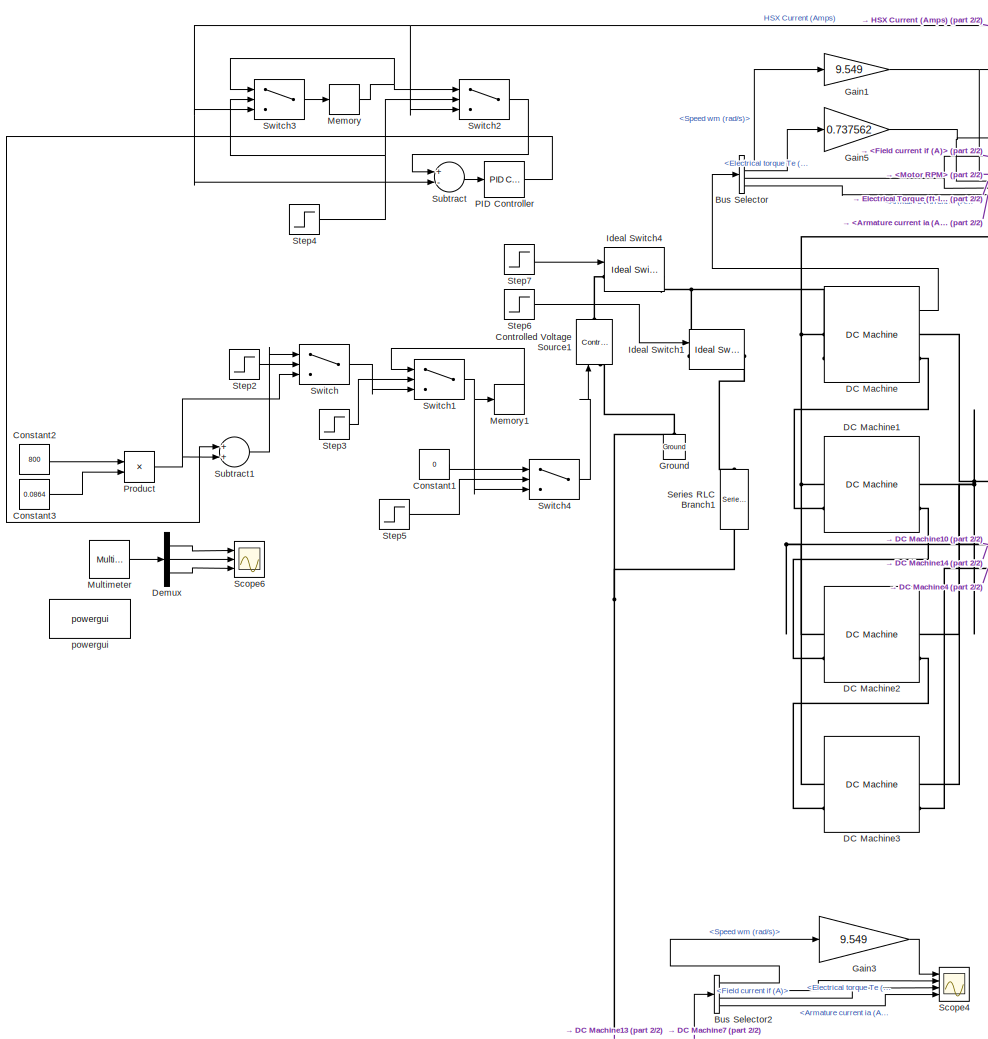
[diagram: root canvas - part 1/2, left side, full height]
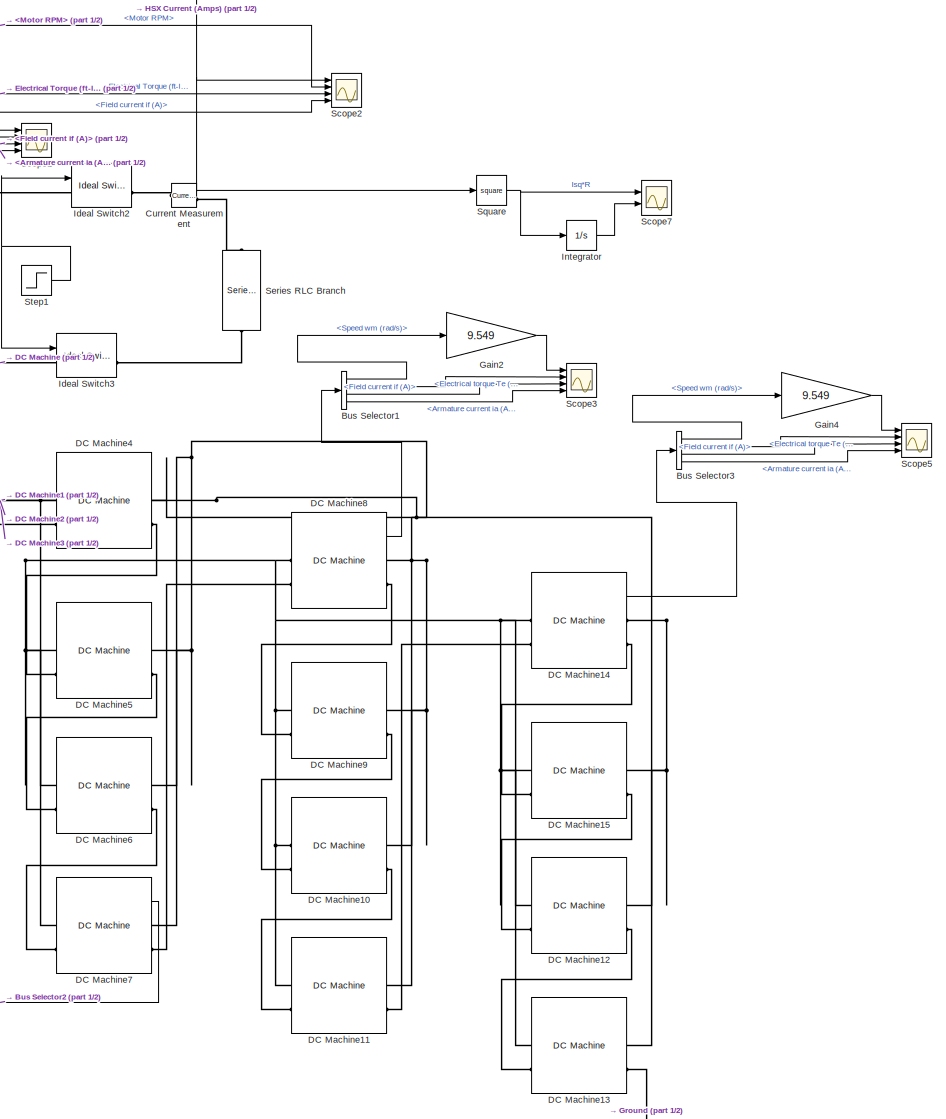
[diagram: root canvas - part 2/2, right side, full height]
MODEL slx_31513acd9793
KIND model
CONFIG AbsTol = auto
CONFIG EnableMultiTasking = off
CONFIG FixedStep = auto
CONFIG MaxStep = auto
CONFIG MinStep = auto
CONFIG RelTol = 1e-3
CONFIG SampleTimeConstraint = Unconstrained
CONFIG Solver = VariableStepAuto
CONFIG SolverName = VariableStepAuto
CONFIG StartTime = 0.0
CONFIG StopTime = 20
WORKSPACE source: mxarray member
WORKSPACE Laf = 0.00847
WORKSPACE Rarm = 0.0096
WORKSPACE angular_vel = 163.55
WORKSPACE angular_vel_2 = 165
BLOCK [BusSelector] Bus Selector
  OutputAsBus = off
  OutputSignals = Speed wm (rad/s),Electrical torque Te (n m),Field current if (A),Armature current ia (A)
  Ports = [1, 4]
BLOCK [BusSelector] Bus Selector1
  OutputAsBus = off
  OutputSignals = Speed wm (rad/s),Electrical torque Te (n m),Field current if (A),Armature current ia (A)
  Ports = [1, 4]
BLOCK [BusSelector] Bus Selector2
  OutputAsBus = off
  OutputSignals = Speed wm (rad/s),Electrical torque Te (n m),Field current if (A),Armature current ia (A)
  Ports = [1, 4]
BLOCK [BusSelector] Bus Selector3
  OutputAsBus = off
  OutputSignals = Speed wm (rad/s),Electrical torque Te (n m),Field current if (A),Armature current ia (A)
  Ports = [1, 4]
BLOCK [Constant] Constant1
  Value = 0
BLOCK [Constant] Constant2
  Value = 800
BLOCK [Constant] Constant3
  Value = 0.0864
BLOCK [Reference] Controlled Voltage Source1  REF=powerlib/Electrical
Sources/Controlled Voltage Source
  Ports = [1, 0, 0, 0, 0, 1, 1]
  SourceBlock = powerlib/Electrical\nSources/Controlled Voltage Source
  SourceProductBaseCode = PS
  SourceProductName = Simscape Electrical
  SourceType = Controlled Voltage Source
BLOCK [Reference] Current Measurement  REF=powerlib/Measurements/Current Measurement
  Ports = [0, 1, 0, 0, 0, 1, 1]
  SourceBlock = powerlib/Measurements/Current Measurement
  SourceProductBaseCode = PS
  SourceProductName = Simscape Electrical
  SourceType = Current Measurement
  UserDataPersistent = on
BLOCK [Reference] DC Machine  REF=powerlib/Machines/DC Machine
  Ports = [1, 1, 0, 0, 0, 2, 2]
  SourceBlock = powerlib/Machines/DC Machine
  SourceProductBaseCode = PS
  SourceProductName = Simscape Electrical
  SourceType = DC machine
BLOCK [Reference] DC Machine1  REF=powerlib/Machines/DC Machine
  Ports = [1, 1, 0, 0, 0, 2, 2]
  SourceBlock = powerlib/Machines/DC Machine
  SourceProductBaseCode = PS
  SourceProductName = Simscape Electrical
  SourceType = DC machine
BLOCK [Reference] DC Machine10  REF=powerlib/Machines/DC Machine
  Ports = [1, 1, 0, 0, 0, 2, 2]
  SourceBlock = powerlib/Machines/DC Machine
  SourceProductBaseCode = PS
  SourceProductName = Simscape Electrical
  SourceType = DC machine
BLOCK [Reference] DC Machine11  REF=powerlib/Machines/DC Machine
  Ports = [1, 1, 0, 0, 0, 2, 2]
  SourceBlock = powerlib/Machines/DC Machine
  SourceProductBaseCode = PS
  SourceProductName = Simscape Electrical
  SourceType = DC machine
BLOCK [Reference] DC Machine12  REF=powerlib/Machines/DC Machine
  Ports = [1, 1, 0, 0, 0, 2, 2]
  SourceBlock = powerlib/Machines/DC Machine
  SourceProductBaseCode = PS
  SourceProductName = Simscape Electrical
  SourceType = DC machine
BLOCK [Reference] DC Machine13  REF=powerlib/Machines/DC Machine
  Ports = [1, 1, 0, 0, 0, 2, 2]
  SourceBlock = powerlib/Machines/DC Machine
  SourceProductBaseCode = PS
  SourceProductName = Simscape Electrical
  SourceType = DC machine
BLOCK [Reference] DC Machine14  REF=powerlib/Machines/DC Machine
  Ports = [1, 1, 0, 0, 0, 2, 2]
  SourceBlock = powerlib/Machines/DC Machine
  SourceProductBaseCode = PS
  SourceProductName = Simscape Electrical
  SourceType = DC machine
BLOCK [Reference] DC Machine15  REF=powerlib/Machines/DC Machine
  Ports = [1, 1, 0, 0, 0, 2, 2]
  SourceBlock = powerlib/Machines/DC Machine
  SourceProductBaseCode = PS
  SourceProductName = Simscape Electrical
  SourceType = DC machine
BLOCK [Reference] DC Machine2  REF=powerlib/Machines/DC Machine
  Ports = [1, 1, 0, 0, 0, 2, 2]
  SourceBlock = powerlib/Machines/DC Machine
  SourceProductBaseCode = PS
  SourceProductName = Simscape Electrical
  SourceType = DC machine
BLOCK [Reference] DC Machine3  REF=powerlib/Machines/DC Machine
  Ports = [1, 1, 0, 0, 0, 2, 2]
  SourceBlock = powerlib/Machines/DC Machine
  SourceProductBaseCode = PS
  SourceProductName = Simscape Electrical
  SourceType = DC machine
BLOCK [Reference] DC Machine4  REF=powerlib/Machines/DC Machine
  Ports = [1, 1, 0, 0, 0, 2, 2]
  SourceBlock = powerlib/Machines/DC Machine
  SourceProductBaseCode = PS
  SourceProductName = Simscape Electrical
  SourceType = DC machine
BLOCK [Reference] DC Machine5  REF=powerlib/Machines/DC Machine
  Ports = [1, 1, 0, 0, 0, 2, 2]
  SourceBlock = powerlib/Machines/DC Machine
  SourceProductBaseCode = PS
  SourceProductName = Simscape Electrical
  SourceType = DC machine
BLOCK [Reference] DC Machine6  REF=powerlib/Machines/DC Machine
  Ports = [1, 1, 0, 0, 0, 2, 2]
  SourceBlock = powerlib/Machines/DC Machine
  SourceProductBaseCode = PS
  SourceProductName = Simscape Electrical
  SourceType = DC machine
BLOCK [Reference] DC Machine7  REF=powerlib/Machines/DC Machine
  Ports = [1, 1, 0, 0, 0, 2, 2]
  SourceBlock = powerlib/Machines/DC Machine
  SourceProductBaseCode = PS
  SourceProductName = Simscape Electrical
  SourceType = DC machine
BLOCK [Reference] DC Machine8  REF=powerlib/Machines/DC Machine
  Ports = [1, 1, 0, 0, 0, 2, 2]
  SourceBlock = powerlib/Machines/DC Machine
  SourceProductBaseCode = PS
  SourceProductName = Simscape Electrical
  SourceType = DC machine
BLOCK [Reference] DC Machine9  REF=powerlib/Machines/DC Machine
  Ports = [1, 1, 0, 0, 0, 2, 2]
  SourceBlock = powerlib/Machines/DC Machine
  SourceProductBaseCode = PS
  SourceProductName = Simscape Electrical
  SourceType = DC machine
BLOCK [Demux] Demux
  DisplayOption = bar
  Outputs = 3
  Ports = [1, 3]
BLOCK [Gain] Gain1
  Gain = 9.549
  OutDataTypeStr = Inherit: Inherit via internal rule
  ParamDataTypeStr = Inherit: Inherit via internal rule
  SaturateOnIntegerOverflow = off
BLOCK [Gain] Gain2
  Gain = 9.549
  OutDataTypeStr = Inherit: Inherit via internal rule
  ParamDataTypeStr = Inherit: Inherit via internal rule
  SaturateOnIntegerOverflow = off
BLOCK [Gain] Gain3
  Gain = 9.549
  OutDataTypeStr = Inherit: Inherit via internal rule
  ParamDataTypeStr = Inherit: Inherit via internal rule
  SaturateOnIntegerOverflow = off
BLOCK [Gain] Gain4
  Gain = 9.549
  OutDataTypeStr = Inherit: Inherit via internal rule
  ParamDataTypeStr = Inherit: Inherit via internal rule
  SaturateOnIntegerOverflow = off
BLOCK [Gain] Gain5
  Gain = 0.737562
  OutDataTypeStr = Inherit: Inherit via internal rule
  ParamDataTypeStr = Inherit: Inherit via internal rule
  SaturateOnIntegerOverflow = off
BLOCK [Reference] Ground  REF=powerlib/Elements/Ground
  Ports = [0, 0, 0, 0, 0, 1]
  SourceBlock = powerlib/Elements/Ground
  SourceProductBaseCode = PS
  SourceProductName = Simscape Electrical
  SourceType = Ground
BLOCK [Reference] Ideal Switch1  REF=powerlib/Power
Electronics/Ideal Switch
  Ports = [1, 1, 0, 0, 0, 1, 1]
  SourceBlock = powerlib/Power\nElectronics/Ideal Switch
  SourceProductBaseCode = PS
  SourceProductName = Simscape Electrical
  SourceType = Ideal Switch
BLOCK [Reference] Ideal Switch2  REF=powerlib/Power
Electronics/Ideal Switch
  Ports = [1, 1, 0, 0, 0, 1, 1]
  SourceBlock = powerlib/Power\nElectronics/Ideal Switch
  SourceProductBaseCode = PS
  SourceProductName = Simscape Electrical
  SourceType = Ideal Switch
BLOCK [Reference] Ideal Switch3  REF=powerlib/Power
Electronics/Ideal Switch
  Ports = [1, 1, 0, 0, 0, 1, 1]
  SourceBlock = powerlib/Power\nElectronics/Ideal Switch
  SourceProductBaseCode = PS
  SourceProductName = Simscape Electrical
  SourceType = Ideal Switch
BLOCK [Reference] Ideal Switch4  REF=powerlib/Power
Electronics/Ideal Switch
  Ports = [1, 1, 0, 0, 0, 1, 1]
  SourceBlock = powerlib/Power\nElectronics/Ideal Switch
  SourceProductBaseCode = PS
  SourceProductName = Simscape Electrical
  SourceType = Ideal Switch
BLOCK [Integrator] Integrator
  Ports = [1, 1]
  ZeroCross = off
BLOCK [Memory] Memory
BLOCK [Memory] Memory1
BLOCK [Reference] Multimeter  REF=powerlib/Measurements/Multimeter
  Ports = [0, 1]
  SourceBlock = powerlib/Measurements/Multimeter
  SourceProductBaseCode = PS
  SourceProductName = Simscape Electrical
  SourceType = MultimeterPSB
BLOCK [Reference] PID Controller  REF=simulink/Continuous/PID Controller
  Ports = [1, 1]
  SourceBlock = simulink/Continuous/PID Controller
  SourceProductBaseCode = SL
  SourceProductName = Simulink
  SourceType = PID 1dof
BLOCK [Product] Product
  InputSameDT = off
  OutDataTypeStr = Inherit: Inherit via internal rule
  Ports = [2, 1]
  RndMeth = Floor
  SaturateOnIntegerOverflow = off
BLOCK [Scope] Scope1
  Floating = off
  NumInputPorts = 4
  Ports = [4]
  ScopeSpecificationString = Simulink.scopes.TimeScopeBlockCfg('CurrentConfiguration', extmgr.ConfigurationSet(extmgr.Configuration('Core','General UI',true,'FigureColor',[0 0 0]),extmgr.Configuration('Core','Source UI',true),extmgr.Configuration('Sources','WiredSimulink',true,'DataLoggingVariableName','ScopeData1'),extmgr.Configuration('Visuals','Time Domain',true,'SerializedDisplays',{struct('MinYLimReal','1247.09077','MaxY...<+3526ch>
BLOCK [Scope] Scope2
  Floating = off
  NumInputPorts = 4
  Ports = [4]
  ScopeSpecificationString = Simulink.scopes.TimeScopeBlockCfg('CurrentConfiguration', extmgr.ConfigurationSet(extmgr.Configuration('Core','General UI',true),extmgr.Configuration('Core','Source UI',true),extmgr.Configuration('Sources','WiredSimulink',true,'DataLoggingVariableName','ScopeData1','SampleTime','0.005'),extmgr.Configuration('Visuals','Time Domain',true,'SerializedDisplays',{struct('MinYLimReal','-1353.43043','MaxY...<+3793ch>
BLOCK [Scope] Scope3
  Floating = off
  NumInputPorts = 4
  Ports = [4]
  ScopeSpecificationString = Simulink.scopes.TimeScopeBlockCfg('CurrentConfiguration', extmgr.ConfigurationSet(extmgr.Configuration('Core','General UI',true),extmgr.Configuration('Core','Source UI',true),extmgr.Configuration('Sources','WiredSimulink',true,'DataLoggingVariableName','ScopeData2'),extmgr.Configuration('Visuals','Time Domain',true,'SerializedDisplays',{struct('MinYLimReal','68.79963','MaxYLimReal','2178.0156','YL...<+3504ch>
BLOCK [Scope] Scope4
  Floating = off
  NumInputPorts = 4
  Ports = [4]
  ScopeSpecificationString = Simulink.scopes.TimeScopeBlockCfg('CurrentConfiguration', extmgr.ConfigurationSet(extmgr.Configuration('Core','General UI',true),extmgr.Configuration('Core','Source UI',true),extmgr.Configuration('Sources','WiredSimulink',true,'DataLoggingVariableName','ScopeData3'),extmgr.Configuration('Visuals','Time Domain',true,'SerializedDisplays',{struct('MinYLimReal','1012.14221','MaxYLimReal','1665.24525',...<+3504ch>
BLOCK [Scope] Scope5
  Floating = off
  NumInputPorts = 4
  Ports = [4]
  ScopeSpecificationString = Simulink.scopes.TimeScopeBlockCfg('CurrentConfiguration', extmgr.ConfigurationSet(extmgr.Configuration('Core','General UI',true),extmgr.Configuration('Core','Source UI',true),extmgr.Configuration('Sources','WiredSimulink',true,'DataLoggingVariableName','ScopeData4'),extmgr.Configuration('Visuals','Time Domain',true,'SerializedDisplays',{struct('MinYLimReal','1137.87929','MaxYLimReal','1651.27447',...<+3503ch>
BLOCK [Scope] Scope6
  Floating = off
  NumInputPorts = 3
  Ports = [3]
  ScopeSpecificationString = Simulink.scopes.TimeScopeBlockCfg('CurrentConfiguration', extmgr.ConfigurationSet(extmgr.Configuration('Core','General UI',true,'FigureColor',[0 0 0]),extmgr.Configuration('Core','Source UI',true),extmgr.Configuration('Sources','WiredSimulink',true,'DataLoggingVariableName','ScopeData1','SampleTime','0.01'),extmgr.Configuration('Visuals','Time Domain',true,'SerializedDisplays',{struct('MinYLimReal...<+2888ch>
BLOCK [Scope] Scope7
  Floating = off
  NumInputPorts = 2
  Ports = [2]
  ScopeSpecificationString = Simulink.scopes.TimeScopeBlockCfg('CurrentConfiguration', extmgr.ConfigurationSet(extmgr.Configuration('Core','General UI',true),extmgr.Configuration('Core','Source UI',true),extmgr.Configuration('Sources','WiredSimulink',true,'DataLoggingVariableName','ScopeData1','SampleTime','0.005'),extmgr.Configuration('Visuals','Time Domain',true,'SerializedDisplays',{struct('MinYLimReal','-14654191.5282','M...<+2329ch>
BLOCK [Reference] Series RLC Branch  REF=powerlib/Elements/Series RLC Branch
  Ports = [0, 0, 0, 0, 0, 1, 1]
  SourceBlock = powerlib/Elements/Series RLC Branch
  SourceProductBaseCode = PS
  SourceProductName = Simscape Electrical
  SourceType = Series RLC Branch
BLOCK [Reference] Series RLC Branch1  REF=powerlib/Elements/Series RLC Branch
  AttributesFormatString = %<Description>
  Description = Field Dump Resistor
  Ports = [0, 0, 0, 0, 0, 1, 1]
  SourceBlock = powerlib/Elements/Series RLC Branch
  SourceProductBaseCode = PS
  SourceProductName = Simscape Electrical
  SourceType = Series RLC Branch
BLOCK [Math] Square
  Operator = square
  Ports = [1, 1]
  RndMeth = Zero
BLOCK [Step] Step1
  SampleTime = 0
  Time = 12
  VectorParams1D = off
BLOCK [Step] Step2
  SampleTime = 0
  Time = 12.72
  VectorParams1D = off
  ZeroCross = off
BLOCK [Step] Step3
  SampleTime = 0
  Time = 13
  VectorParams1D = off
  ZeroCross = off
BLOCK [Step] Step4
  SampleTime = 0
  Time = 12.72
  VectorParams1D = off
  ZeroCross = off
BLOCK [Step] Step5
  SampleTime = 0
  Time = 13
  VectorParams1D = off
  ZeroCross = off
BLOCK [Step] Step6
  SampleTime = 0
  Time = 13
  VectorParams1D = off
  ZeroCross = off
BLOCK [Step] Step7
  After = 0
  Before = 1
  SampleTime = 0
  Time = 13
  VectorParams1D = off
  ZeroCross = off
BLOCK [Sum] Subtract
  InputSameDT = off
  Inputs = +-
  OutDataTypeStr = Inherit: Inherit via internal rule
  Ports = [2, 1]
  SaturateOnIntegerOverflow = off
BLOCK [Sum] Subtract1
  InputSameDT = off
  OutDataTypeStr = Inherit: Inherit via internal rule
  Ports = [2, 1]
  SaturateOnIntegerOverflow = off
BLOCK [Switch] Switch
  InputSameDT = off
  SaturateOnIntegerOverflow = off
  Threshold = 1
  ZeroCross = off
BLOCK [Switch] Switch1
  InputSameDT = off
  SaturateOnIntegerOverflow = off
  Threshold = 1
  ZeroCross = off
BLOCK [Switch] Switch2
  InputSameDT = off
  SaturateOnIntegerOverflow = off
  Threshold = 1
  ZeroCross = off
BLOCK [Switch] Switch3
  InputSameDT = off
  SaturateOnIntegerOverflow = off
  Threshold = 1
  ZeroCross = off
BLOCK [Switch] Switch4
  InputSameDT = off
  SaturateOnIntegerOverflow = off
  Threshold = 1
  ZeroCross = off
BLOCK [Reference] powergui  REF=powerlib/powergui
  Ports = []
  Priority = 1
  SourceBlock = powerlib/powergui
  SourceProductBaseCode = PS
  SourceProductName = Simscape Electrical
  SourceType = PSB option menu block
LINE Bus Selector1:1 -> Gain2:1
LINE Bus Selector1:2 -> Scope3:2
LINE Bus Selector1:3 -> Scope3:3
LINE Bus Selector1:4 -> Scope3:4
LINE Bus Selector2:1 -> Gain3:1
LINE Bus Selector2:2 -> Scope4:2
LINE Bus Selector2:3 -> Scope4:3
LINE Bus Selector2:4 -> Scope4:4
LINE Bus Selector3:1 -> Gain4:1
LINE Bus Selector3:2 -> Scope5:2
LINE Bus Selector3:3 -> Scope5:3
LINE Bus Selector3:4 -> Scope5:4
LINE Bus Selector:1 -> Gain1:1
LINE Bus Selector:2 -> Gain5:1
NET Bus Selector:3 -> Scope1:3, Scope2:4
LINE Bus Selector:4 -> Scope1:4
LINE Constant1:1 -> Switch4:1
LINE Constant2:1 -> Product:1
LINE Constant3:1 -> Product:2
NET Current Measurement:1 -> Scope2:1, Square:1, Subtract:2, Switch2:3, Switch3:3
LINE DC Machine14:1 -> Bus Selector3:1
LINE DC Machine7:1 -> Bus Selector2:1
LINE DC Machine8:1 -> Bus Selector1:1
LINE DC Machine:1 -> Bus Selector:1
LINE Demux:1 -> Scope6:1
LINE Demux:2 -> Scope6:2
LINE Demux:3 -> Scope6:3
NET Gain1:1 -> Scope1:1, Scope2:2
LINE Gain2:1 -> Scope3:1
LINE Gain3:1 -> Scope4:1
LINE Gain4:1 -> Scope5:1
NET Gain5:1 -> Scope1:2, Scope2:3
LINE Integrator:1 -> Scope7:2
LINE Memory1:1 -> Switch1:1
NET Memory:1 -> Switch2:1, Switch3:1
LINE Multimeter:1 -> Demux:1
LINE PID Controller:1 -> Subtract1:1
NET Product:1 -> Subtract1:2, Switch:3
NET Square:1 -> Integrator:1, Scope7:1
NET Step1:1 -> Ideal Switch2:1, Ideal Switch3:1
LINE Step2:1 -> Switch:2
LINE Step3:1 -> Switch1:2
NET Step4:1 -> Switch2:2, Switch3:2
LINE Step5:1 -> Switch4:2
LINE Step6:1 -> Ideal Switch1:1
LINE Step7:1 -> Ideal Switch4:1
LINE Subtract1:1 -> Switch:1
LINE Subtract:1 -> PID Controller:1
NET Switch1:1 -> Memory1:1, Switch4:3
LINE Switch2:1 -> Subtract:1
LINE Switch3:1 -> Memory:1
LINE Switch4:1 -> Controlled Voltage Source1:1
LINE Switch:1 -> Switch1:3
PNET net1: Controlled Voltage Source1:LConn1 -- DC Machine13:RConn2 -- Ground:LConn1 -- Series RLC Branch1:RConn1
PLINE Controlled Voltage Source1:RConn1 -- Ideal Switch4:LConn1
PLINE Current Measurement:LConn1 -- Ideal Switch2:RConn1
PLINE Current Measurement:RConn1 -- Series RLC Branch:LConn1
PNET net2: DC Machine10:LConn1 -- DC Machine11:LConn1 -- DC Machine12:LConn1 -- DC Machine13:LConn1 -- DC Machine14:LConn1 -- DC Machine15:LConn1 -- DC Machine1:LConn1 -- DC Machine2:LConn1 -- DC Machine3:LConn1 -- DC Machine4:LConn1 -- DC Machine5:LConn1 -- DC Machine6:LConn1 -- DC Machine7:LConn1 -- DC Machine8:LConn1 -- DC Machine9:LConn1 -- DC Machine:LConn1 -- Ideal Switch2:LConn1
PLINE DC Machine10:LConn2 -- DC Machine9:RConn2
PNET net3: DC Machine10:RConn1 -- DC Machine11:RConn1 -- DC Machine12:RConn1 -- DC Machine13:RConn1 -- DC Machine14:RConn1 -- DC Machine15:RConn1 -- DC Machine1:RConn1 -- DC Machine2:RConn1 -- DC Machine3:RConn1 -- DC Machine4:RConn1 -- DC Machine5:RConn1 -- DC Machine6:RConn1 -- DC Machine7:RConn1 -- DC Machine8:RConn1 -- DC Machine9:RConn1 -- DC Machine:RConn1 -- Ideal Switch3:LConn1
PLINE DC Machine10:RConn2 -- DC Machine11:LConn2
PLINE DC Machine11:RConn2 -- DC Machine14:LConn2
PLINE DC Machine12:LConn2 -- DC Machine15:RConn2
PLINE DC Machine12:RConn2 -- DC Machine13:LConn2
PLINE DC Machine14:RConn2 -- DC Machine15:LConn2
PLINE DC Machine1:LConn2 -- DC Machine:RConn2
PLINE DC Machine1:RConn2 -- DC Machine2:LConn2
PLINE DC Machine2:RConn2 -- DC Machine3:LConn2
PLINE DC Machine3:RConn2 -- DC Machine4:LConn2
PLINE DC Machine4:RConn2 -- DC Machine5:LConn2
PLINE DC Machine5:RConn2 -- DC Machine6:LConn2
PLINE DC Machine6:RConn2 -- DC Machine7:LConn2
PLINE DC Machine7:RConn2 -- DC Machine8:LConn2
PLINE DC Machine8:RConn2 -- DC Machine9:LConn2
PNET net4: DC Machine:LConn2 -- Ideal Switch1:LConn1 -- Ideal Switch4:RConn1
PLINE Ideal Switch1:RConn1 -- Series RLC Branch1:LConn1
PLINE Ideal Switch3:RConn1 -- Series RLC Branch:RConn1
note: NET lines group one-source signal fan-out (src -> all destinations, sorted); 1:1 wires keep LINE; PNET lines group multi-terminal physical nets as a canonical sorted terminal list (undirected conserving connections); 2-terminal nets keep the pairwise PLINE form
